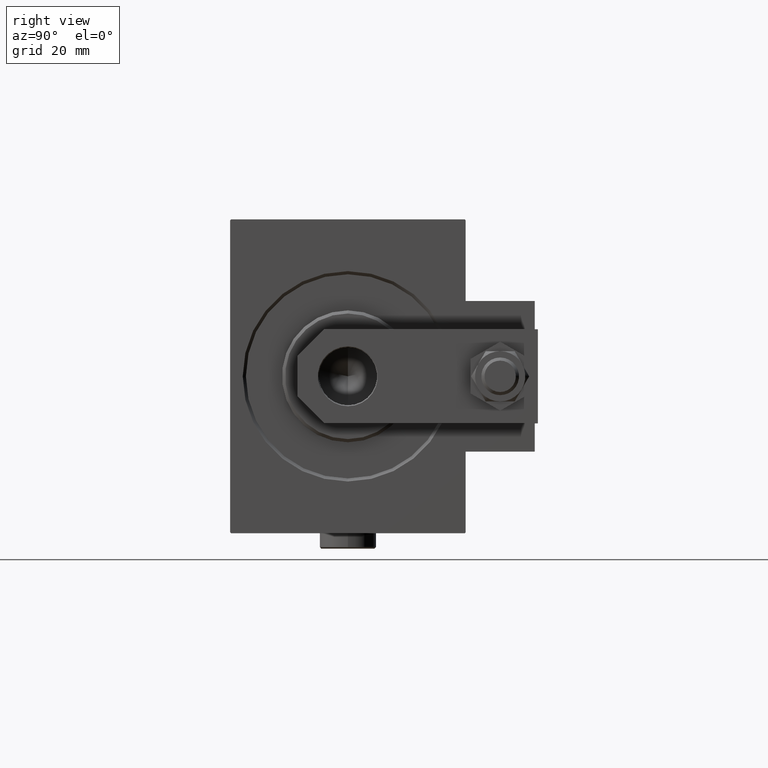
[diagram: clean part render]
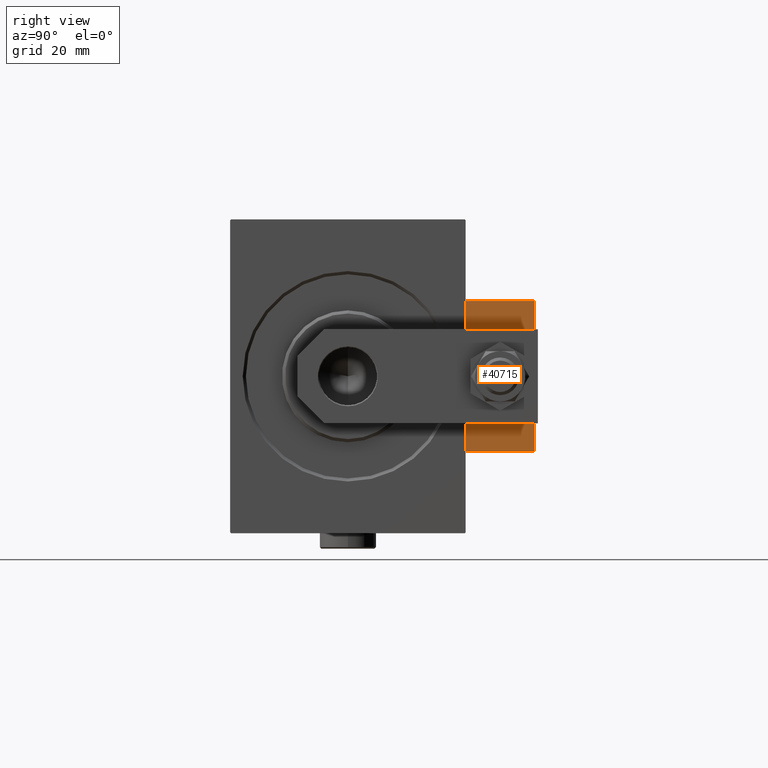
[diagram: same view with one face highlighted and labeled with its STEP entity id]
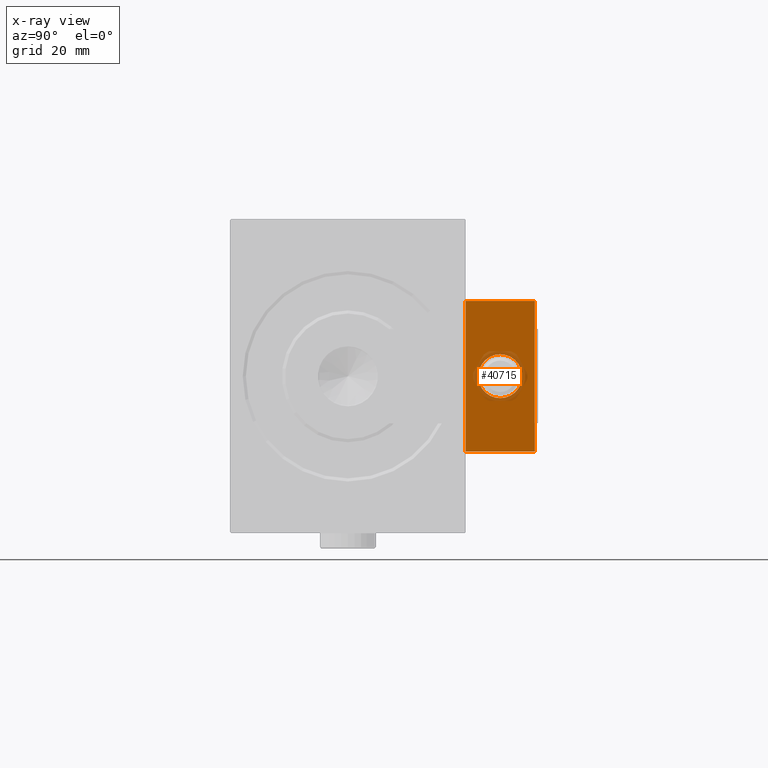
[diagram: x-ray of the same camera — body ghosted, the highlighted face saturated]
A machine part, right view. The second image highlights one B-rep face of the part: STEP entity #40715.
The next image is the same camera in x-ray: the body ghosted, the highlighted face saturated — about 7% of this face is hidden behind the body in this view.
In plain terms, the highlighted planar face has unit normal (-1, 0, 0).
Its self-contained STEP definition (entity closure, byte-faithful):
#2385 = VECTOR ( 'NONE', #26786, 1000.000000000000000 ) ;
#2421 = CARTESIAN_POINT ( 'NONE',  ( 15.00000000000000000, 11.00000000000000355, -23.99999999999999289 ) ) ;
#2767 = AXIS2_PLACEMENT_3D ( 'NONE', #46867, #11601, #7448 ) ;
#2939 = VERTEX_POINT ( 'NONE', #48688 ) ;
#3553 = CARTESIAN_POINT ( 'NONE',  ( 15.00000000000000000, 11.00000000000000355, 24.00000000000000711 ) ) ;
#4057 = LINE ( 'NONE', #3553, #42672 ) ;
#5301 = EDGE_CURVE ( 'NONE', #28198, #42476, #45727, .T. ) ;
#6646 = CARTESIAN_POINT ( 'NONE',  ( 15.00000000000000000, 3.469446951953614189E-15, 0.000000000000000000 ) ) ;
#7304 = DIRECTION ( 'NONE',  ( -1.000000000000000000, 0.000000000000000000, 0.000000000000000000 ) ) ;
#7448 = DIRECTION ( 'NONE',  ( -0.000000000000000000, 0.000000000000000000, 1.000000000000000000 ) ) ;
#7557 = DIRECTION ( 'NONE',  ( 0.000000000000000000, 0.000000000000000000, 1.000000000000000000 ) ) ;
#9544 = CARTESIAN_POINT ( 'NONE',  ( 15.00000000000000000, 3.469446951953614189E-15, 7.000000000000000000 ) ) ;
#9747 = CARTESIAN_POINT ( 'NONE',  ( 15.00000000000000000, -11.00000000000000000, 24.00000000000000355 ) ) ;
#10387 = ORIENTED_EDGE ( 'NONE', *, *, #29050, .F. ) ;
#10734 = VECTOR ( 'NONE', #49515, 1000.000000000000000 ) ;
#11601 = DIRECTION ( 'NONE',  ( -1.000000000000000000, 0.000000000000000000, -0.000000000000000000 ) ) ;
#12099 = DIRECTION ( 'NONE',  ( 0.000000000000000000, -1.000000000000000000, -1.577021341797097314E-16 ) ) ;
#14844 = CARTESIAN_POINT ( 'NONE',  ( 15.00000000000000000, 3.469446951953614189E-15, 0.000000000000000000 ) ) ;
#15751 = PLANE ( 'NONE',  #2767 ) ;
#17529 = LINE ( 'NONE', #9747, #36702 ) ;
#18945 = EDGE_LOOP ( 'NONE', ( #24209, #34275 ) ) ;
#18982 = EDGE_LOOP ( 'NONE', ( #22774, #44863, #10387, #22956 ) ) ;
#19191 = CIRCLE ( 'NONE', #36589, 7.000000000000000000 ) ;
#20813 = EDGE_CURVE ( 'NONE', #50264, #43694, #4057, .T. ) ;
#20974 = CARTESIAN_POINT ( 'NONE',  ( 15.00000000000000000, -11.00000000000000000, 24.00000000000000355 ) ) ;
#22464 = DIRECTION ( 'NONE',  ( -1.000000000000000000, 0.000000000000000000, 0.000000000000000000 ) ) ;
#22774 = ORIENTED_EDGE ( 'NONE', *, *, #40124, .T. ) ;
#22801 = EDGE_CURVE ( 'NONE', #2939, #41513, #22971, .T. ) ;
#22956 = ORIENTED_EDGE ( 'NONE', *, *, #20813, .T. ) ;
#22971 = CIRCLE ( 'NONE', #24635, 7.000000000000000000 ) ;
#24209 = ORIENTED_EDGE ( 'NONE', *, *, #36984, .T. ) ;
#24635 = AXIS2_PLACEMENT_3D ( 'NONE', #14844, #7304, #7557 ) ;
#26786 = DIRECTION ( 'NONE',  ( 0.000000000000000000, -1.000000000000000000, -3.154042683594194627E-16 ) ) ;
#28198 = VERTEX_POINT ( 'NONE', #39171 ) ;
#29050 = EDGE_CURVE ( 'NONE', #50264, #28198, #33968, .T. ) ;
#32442 = CARTESIAN_POINT ( 'NONE',  ( 15.00000000000000000, -11.00000000000000000, -24.00000000000000000 ) ) ;
#33968 = LINE ( 'NONE', #37599, #10734 ) ;
#34275 = ORIENTED_EDGE ( 'NONE', *, *, #22801, .T. ) ;
#34949 = FACE_BOUND ( 'NONE', #18945, .T. ) ;
#36589 = AXIS2_PLACEMENT_3D ( 'NONE', #6646, #22464, #38286 ) ;
#36702 = VECTOR ( 'NONE', #41377, 1000.000000000000000 ) ;
#36984 = EDGE_CURVE ( 'NONE', #41513, #2939, #19191, .T. ) ;
#37599 = CARTESIAN_POINT ( 'NONE',  ( 15.00000000000000000, 11.00000000000000355, 24.00000000000000711 ) ) ;
#38286 = DIRECTION ( 'NONE',  ( 0.000000000000000000, 0.000000000000000000, 1.000000000000000000 ) ) ;
#39171 = CARTESIAN_POINT ( 'NONE',  ( 15.00000000000000000, 11.00000000000000355, -23.99999999999999289 ) ) ;
#40124 = EDGE_CURVE ( 'NONE', #43694, #42476, #17529, .T. ) ;
#40715 = ADVANCED_FACE ( 'NONE', ( #34949, #47117 ), #15751, .F. ) ;
#41377 = DIRECTION ( 'NONE',  ( 0.000000000000000000, 0.000000000000000000, -1.000000000000000000 ) ) ;
#41513 = VERTEX_POINT ( 'NONE', #9544 ) ;
#42476 = VERTEX_POINT ( 'NONE', #32442 ) ;
#42672 = VECTOR ( 'NONE', #12099, 1000.000000000000000 ) ;
#43694 = VERTEX_POINT ( 'NONE', #20974 ) ;
#44863 = ORIENTED_EDGE ( 'NONE', *, *, #5301, .F. ) ;
#45727 = LINE ( 'NONE', #2421, #2385 ) ;
#46867 = CARTESIAN_POINT ( 'NONE',  ( 15.00000000000000000, 0.000000000000000000, 0.000000000000000000 ) ) ;
#47117 = FACE_OUTER_BOUND ( 'NONE', #18982, .T. ) ;
#48154 = CARTESIAN_POINT ( 'NONE',  ( 15.00000000000000000, 11.00000000000000355, 24.00000000000000711 ) ) ;
#48688 = CARTESIAN_POINT ( 'NONE',  ( 15.00000000000000000, 4.326699711356761015E-15, -7.000000000000000000 ) ) ;
#49515 = DIRECTION ( 'NONE',  ( 0.000000000000000000, 0.000000000000000000, -1.000000000000000000 ) ) ;
#50264 = VERTEX_POINT ( 'NONE', #48154 ) ;